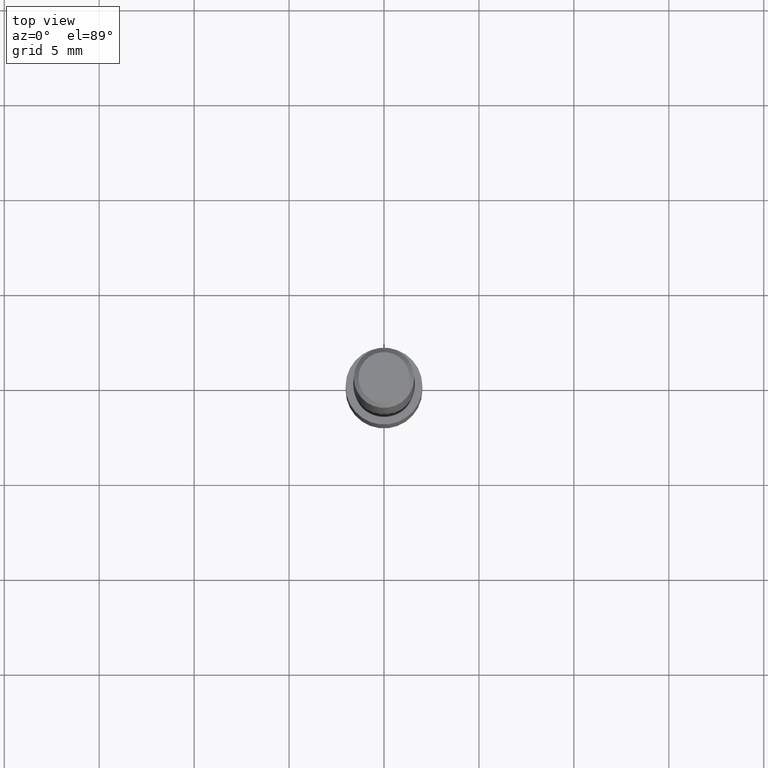
[diagram: clean part render]
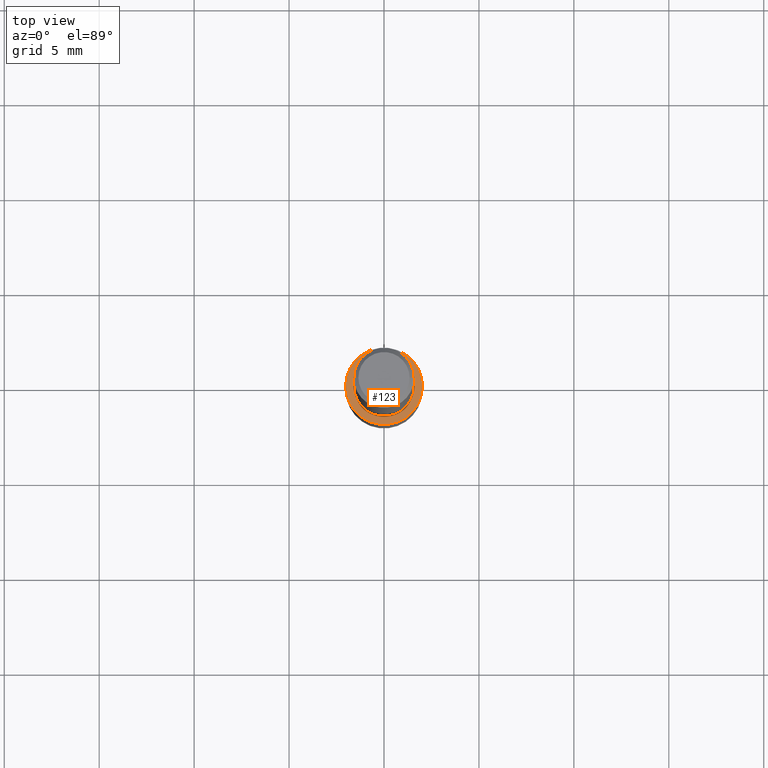
[diagram: same view with one face highlighted and labeled with its STEP entity id]
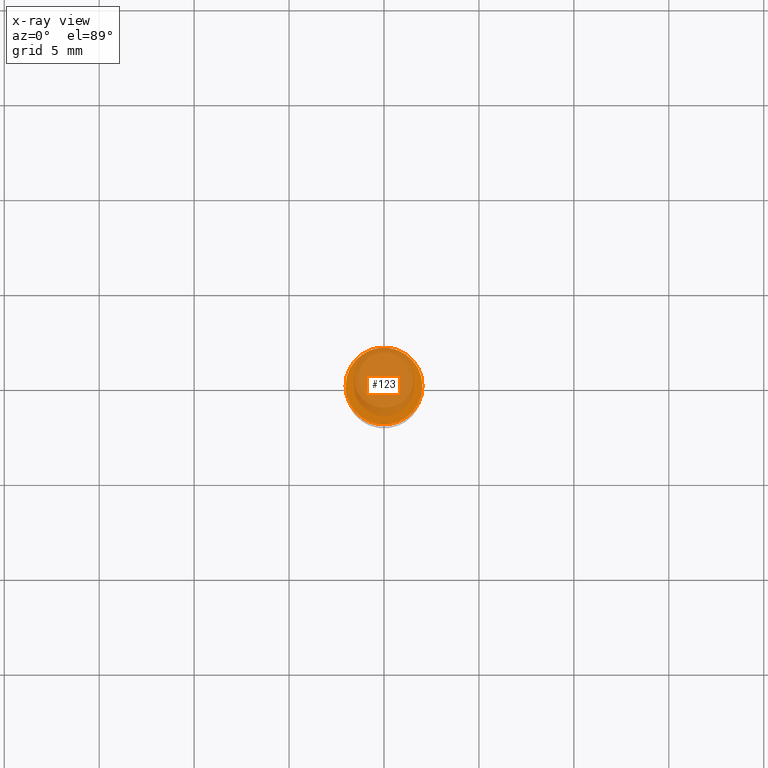
[diagram: x-ray of the same camera — body ghosted, the highlighted face saturated]
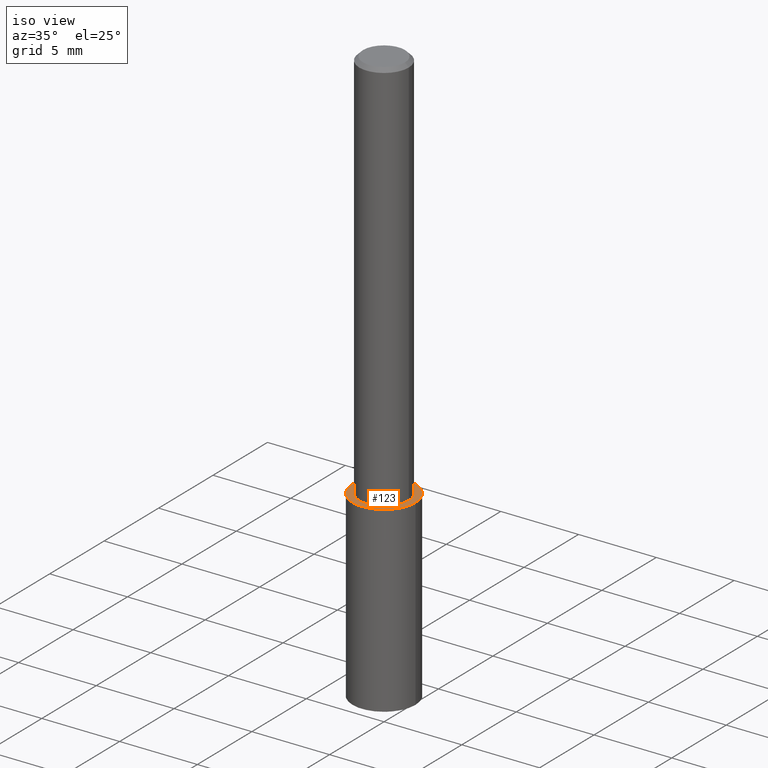
[diagram: same view with one face highlighted and labeled with its STEP entity id]
A machine part, top view. The second image highlights one B-rep face of the part: STEP entity #123.
The next image is the same camera in x-ray: the body ghosted, the highlighted face saturated — about 71% of this face is hidden behind the body in this view.
A second angle (iso view) of the same face is appended — the face is thin or edge-on in the first view.
In plain terms, the highlighted planar face has unit normal (0, -0, -1).
Its self-contained STEP definition (entity closure, byte-faithful):
#4 = CIRCLE ( 'NONE', #227, 0.07969999999999999307 ) ;
#9 = VERTEX_POINT ( 'NONE', #179 ) ;
#63 = DIRECTION ( 'NONE',  ( -1.000000000000000000, 6.982962677686265922E-15, -4.876176775795935793E-29 ) ) ;
#65 = AXIS2_PLACEMENT_3D ( 'NONE', #173, #199, #306 ) ;
#76 = AXIS2_PLACEMENT_3D ( 'NONE', #331, #302, #63 ) ;
#85 = VERTEX_POINT ( 'NONE', #127 ) ;
#90 = DIRECTION ( 'NONE',  ( -2.445468806185136597E-29, 3.491481338843145583E-15, 1.000000000000000000 ) ) ;
#91 = EDGE_LOOP ( 'NONE', ( #200, #275 ) ) ;
#111 = DIRECTION ( 'NONE',  ( 1.000000000000000000, -6.982962677686265133E-15, 0.000000000000000000 ) ) ;
#123 = ADVANCED_FACE ( 'NONE', ( #305 ), #246, .F. ) ;
#127 = CARTESIAN_POINT ( 'NONE',  ( 0.07969999999999999307, -4.048023464254741036E-15, -1.000000000000000222 ) ) ;
#173 = CARTESIAN_POINT ( 'NONE',  ( 2.445468806185136877E-29, -3.491481338843145977E-15, -1.000000000000000222 ) ) ;
#179 = CARTESIAN_POINT ( 'NONE',  ( -0.07969999999999999307, -3.733169149361811559E-15, -1.000000000000000222 ) ) ;
#185 = CIRCLE ( 'NONE', #65, 0.07969999999999999307 ) ;
#199 = DIRECTION ( 'NONE',  ( -2.445468806185136597E-29, 3.491481338843145583E-15, 1.000000000000000000 ) ) ;
#200 = ORIENTED_EDGE ( 'NONE', *, *, #301, .T. ) ;
#201 = CARTESIAN_POINT ( 'NONE',  ( 2.445468806185136877E-29, -3.491481338843145977E-15, -1.000000000000000222 ) ) ;
#227 = AXIS2_PLACEMENT_3D ( 'NONE', #201, #90, #111 ) ;
#246 = PLANE ( 'NONE',  #76 ) ;
#275 = ORIENTED_EDGE ( 'NONE', *, *, #339, .T. ) ;
#301 = EDGE_CURVE ( 'NONE', #85, #9, #4, .T. ) ;
#302 = DIRECTION ( 'NONE',  ( 2.438088387897960049E-29, -3.491481338843145188E-15, -1.000000000000000000 ) ) ;
#305 = FACE_OUTER_BOUND ( 'NONE', #91, .T. ) ;
#306 = DIRECTION ( 'NONE',  ( 1.000000000000000000, -6.982962677686265133E-15, 0.000000000000000000 ) ) ;
#331 = CARTESIAN_POINT ( 'NONE',  ( 3.642231201471816634E-29, -1.777649473307221347E-15, -1.000000000000000222 ) ) ;
#339 = EDGE_CURVE ( 'NONE', #9, #85, #185, .T. ) ;